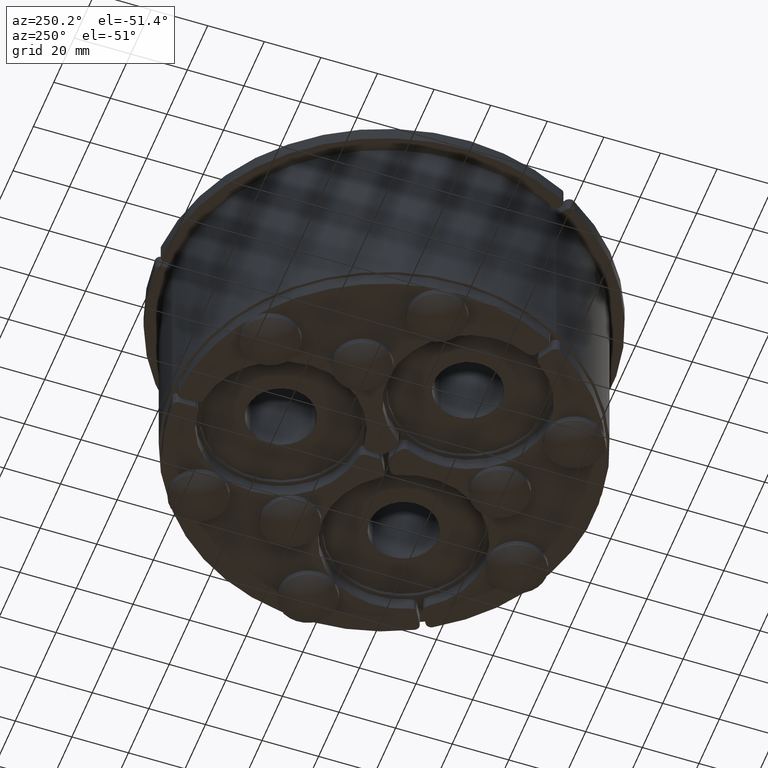
[diagram: clean part render]
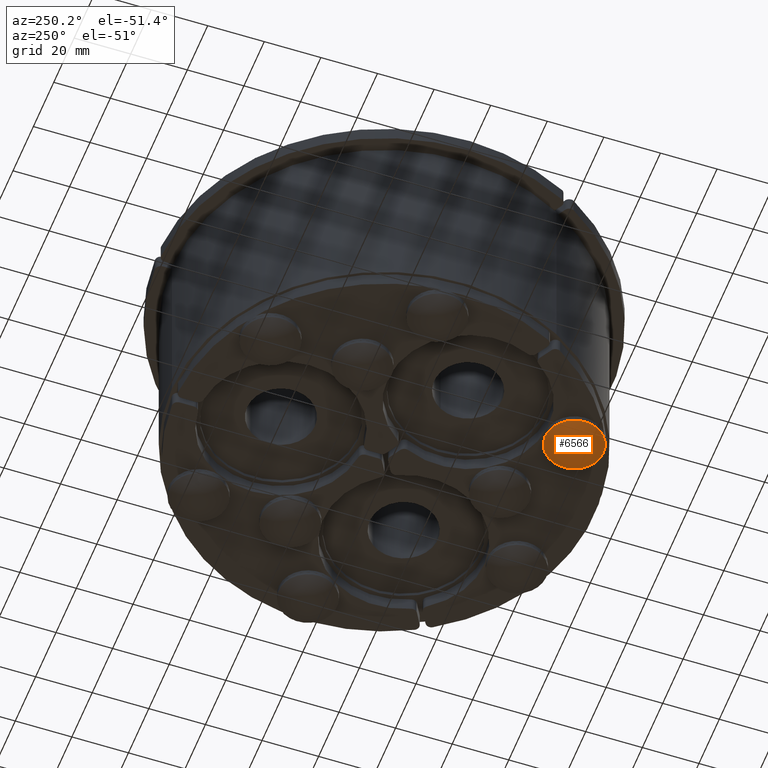
[diagram: same view with one face highlighted and labeled with its STEP entity id]
A machine part, auxiliary view. The second image highlights one B-rep face of the part: STEP entity #6566.
In plain terms, the highlighted spherical surface has radius 16 mm.
Its self-contained STEP definition (entity closure, byte-faithful):
#6550=CARTESIAN_POINT('',(11.120000000000005,0.0,0.0));
#6551=DIRECTION('',(0.0,0.0,1.0));
#6552=DIRECTION('',(1.0,0.0,0.0));
#6553=AXIS2_PLACEMENT_3D('',#6550,#6551,#6552);
#6554=SPHERICAL_SURFACE('',#6553,16.000000000000004);
#6555=CARTESIAN_POINT('',(-1.102699169986955,10.325000000000003,0.0));
#6556=VERTEX_POINT('',#6555);
#6557=CARTESIAN_POINT('',(-1.102699169986963,-1.034504E-033,0.0));
#6558=DIRECTION('',(1.0,0.0,0.0));
#6559=DIRECTION('',(0.0,1.0,0.0));
#6560=AXIS2_PLACEMENT_3D('',#6557,#6558,#6559);
#6561=CIRCLE('',#6560,10.325000000000003);
#6562=EDGE_CURVE('',#6556,#6556,#6561,.T.);
#6563=ORIENTED_EDGE('',*,*,#6562,.F.);
#6564=EDGE_LOOP('',(#6563));
#6565=FACE_OUTER_BOUND('',#6564,.T.);
#6566=ADVANCED_FACE('',(#6565),#6554,.T.);